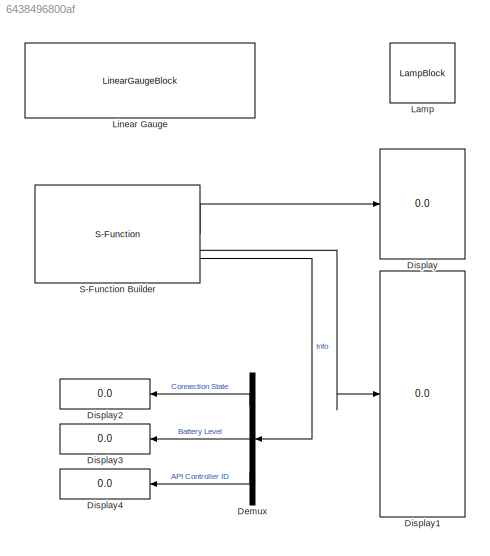
MODEL slx_6438496800af
KIND model
BLOCK [Demux] Demux
  Outputs = 3
BLOCK [Display] Display
  Decimation = 1
BLOCK [Display] Display1
  Decimation = 1
BLOCK [Display] Display2
  Decimation = 1
BLOCK [Display] Display3
  Decimation = 1
BLOCK [Display] Display4
  Decimation = 1
BLOCK [LampBlock] Lamp
BLOCK [LinearGaugeBlock] Linear Gauge
  TickInterval = 25
BLOCK [S-Function] S-Function Builder
  CopyFcn = set_param(gcbh,'LinkStatus','none')
  EnableBusSupport = off
  FunctionName = XInput_Controller_2
  InitFcn = try, set_param(gcb,'FunctionName','XInput_Controller_2'), end
  OpenFcn = sfunctionwizard(gcbh)
  Parameters = 1
  PreSaveFcn = try, set_param(gcb,'FunctionName','XInput_Controller_2'), end
  SFcnIsStateOwnerBlock = off
  SFunctionDeploymentMode = off
  SFunctionModules = XInput_Controller_2_wrapper
LINE Demux:1 -> Display2:1
LINE Demux:2 -> Display3:1
LINE Demux:3 -> Display4:1
LINE S-Function Builder:1 -> Display:1
LINE S-Function Builder:2 -> Display1:1
LINE S-Function Builder:3 -> Demux:1
